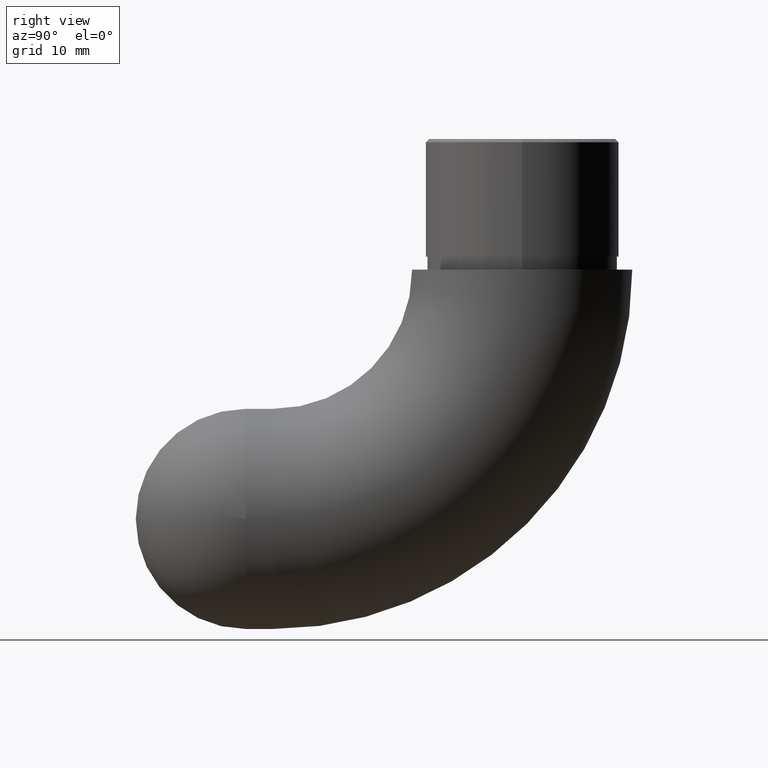
[diagram: clean part render]
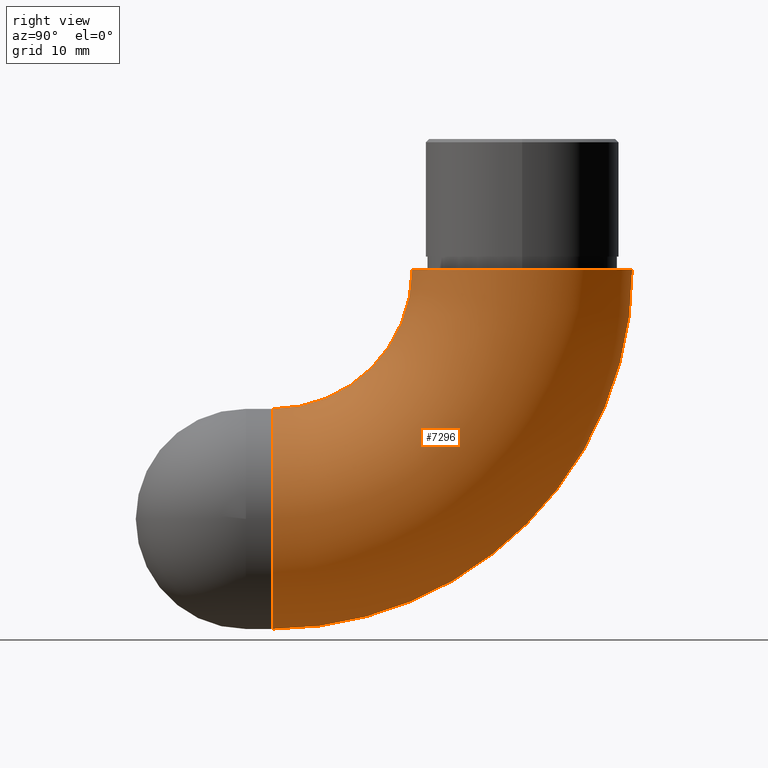
[diagram: same view with one face highlighted and labeled with its STEP entity id]
A machine part, right view. The second image highlights one B-rep face of the part: STEP entity #7296.
In plain terms, the highlighted toroidal blend (fillet) surface has major radius 38.15 mm and minor (blend) radius 16.85 mm.
Its self-contained STEP definition (entity closure, byte-faithful):
#22 = CARTESIAN_POINT ( 'NONE',  ( 0.000000000000000000, 38.14999999999999858, 6.134987908516368297E-15 ) ) ;
#585 = CIRCLE ( 'NONE', #5127, 21.29999999999999716 ) ;
#1047 = VERTEX_POINT ( 'NONE', #5498 ) ;
#1076 = CIRCLE ( 'NONE', #8488, 16.85000000000000142 ) ;
#1155 = DIRECTION ( 'NONE',  ( -1.000000000000000000, -0.000000000000000000, -0.000000000000000000 ) ) ;
#1230 = AXIS2_PLACEMENT_3D ( 'NONE', #1914, #7490, #8445 ) ;
#1532 = VERTEX_POINT ( 'NONE', #9719 ) ;
#1836 = DIRECTION ( 'NONE',  ( 0.000000000000000000, -1.000000000000000000, -1.608122649676636601E-16 ) ) ;
#1914 = CARTESIAN_POINT ( 'NONE',  ( 0.000000000000000000, 3.469446951953614189E-15, -38.14999999999997726 ) ) ;
#1963 = ORIENTED_EDGE ( 'NONE', *, *, #8296, .F. ) ;
#2125 = DIRECTION ( 'NONE',  ( -1.000000000000000000, -0.000000000000000000, -0.000000000000000000 ) ) ;
#2597 = EDGE_CURVE ( 'NONE', #1532, #1047, #585, .T. ) ;
#3623 = DIRECTION ( 'NONE',  ( 0.000000000000000000, 0.000000000000000000, 1.000000000000000000 ) ) ;
#4211 = AXIS2_PLACEMENT_3D ( 'NONE', #7399, #9325, #3623 ) ;
#4634 = ORIENTED_EDGE ( 'NONE', *, *, #8301, .F. ) ;
#5127 = AXIS2_PLACEMENT_3D ( 'NONE', #7822, #2125, #6897 ) ;
#5308 = ORIENTED_EDGE ( 'NONE', *, *, #7486, .F. ) ;
#5498 = CARTESIAN_POINT ( 'NONE',  ( 2.063529856563292216E-15, 3.469446951953614189E-15, -21.29999999999995808 ) ) ;
#5765 = ORIENTED_EDGE ( 'NONE', *, *, #2597, .T. ) ;
#5885 = CARTESIAN_POINT ( 'NONE',  ( 0.000000000000000000, 0.000000000000000000, 0.000000000000000000 ) ) ;
#6565 = AXIS2_PLACEMENT_3D ( 'NONE', #5885, #1155, #7809 ) ;
#6897 = DIRECTION ( 'NONE',  ( 0.000000000000000000, 0.000000000000000000, 1.000000000000000000 ) ) ;
#7278 = VERTEX_POINT ( 'NONE', #8851 ) ;
#7296 = ADVANCED_FACE ( 'NONE', ( #9443 ), #12263, .T. ) ;
#7399 = CARTESIAN_POINT ( 'NONE',  ( 0.000000000000000000, 0.000000000000000000, 0.000000000000000000 ) ) ;
#7479 = CARTESIAN_POINT ( 'NONE',  ( 0.000000000000000000, 54.99999999999999289, 8.844674573221500637E-15 ) ) ;
#7486 = EDGE_CURVE ( 'NONE', #10488, #7278, #8387, .T. ) ;
#7490 = DIRECTION ( 'NONE',  ( -0.000000000000000000, -1.000000000000000000, -0.000000000000000000 ) ) ;
#7809 = DIRECTION ( 'NONE',  ( 0.000000000000000000, 0.000000000000000000, 1.000000000000000000 ) ) ;
#7822 = CARTESIAN_POINT ( 'NONE',  ( 2.063529856563290244E-15, 0.000000000000000000, 0.000000000000000000 ) ) ;
#7925 = CIRCLE ( 'NONE', #1230, 16.85000000000001918 ) ;
#8147 = EDGE_LOOP ( 'NONE', ( #5308, #1963, #5765, #4634 ) ) ;
#8296 = EDGE_CURVE ( 'NONE', #1532, #10488, #1076, .T. ) ;
#8301 = EDGE_CURVE ( 'NONE', #7278, #1047, #7925, .T. ) ;
#8387 = CIRCLE ( 'NONE', #4211, 54.99999999999999289 ) ;
#8445 = DIRECTION ( 'NONE',  ( 0.000000000000000000, 0.000000000000000000, -1.000000000000000000 ) ) ;
#8488 = AXIS2_PLACEMENT_3D ( 'NONE', #22, #8606, #1836 ) ;
#8606 = DIRECTION ( 'NONE',  ( 0.000000000000000000, -1.608122649676636601E-16, 1.000000000000000000 ) ) ;
#8851 = CARTESIAN_POINT ( 'NONE',  ( 0.000000000000000000, 3.469446951953614189E-15, -54.99999999999999289 ) ) ;
#9325 = DIRECTION ( 'NONE',  ( -1.000000000000000000, -0.000000000000000000, -0.000000000000000000 ) ) ;
#9443 = FACE_OUTER_BOUND ( 'NONE', #8147, .T. ) ;
#9719 = CARTESIAN_POINT ( 'NONE',  ( 0.000000000000000000, 21.29999999999999716, 3.425301243811235562E-15 ) ) ;
#10488 = VERTEX_POINT ( 'NONE', #7479 ) ;
#12263 = TOROIDAL_SURFACE ( 'NONE', #6565, 38.14999999999999858, 16.85000000000000142 ) ;